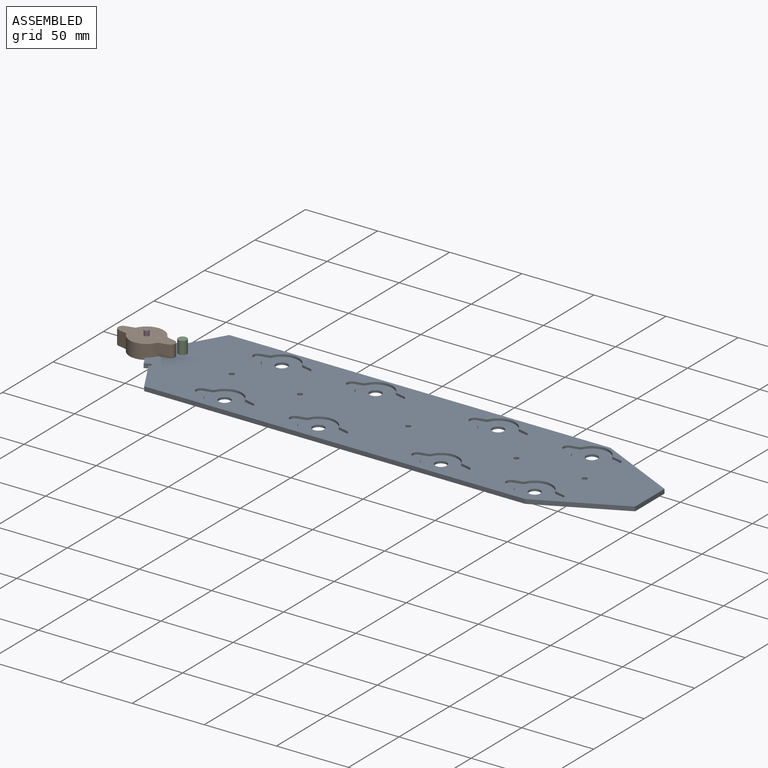
[diagram: assembled view]
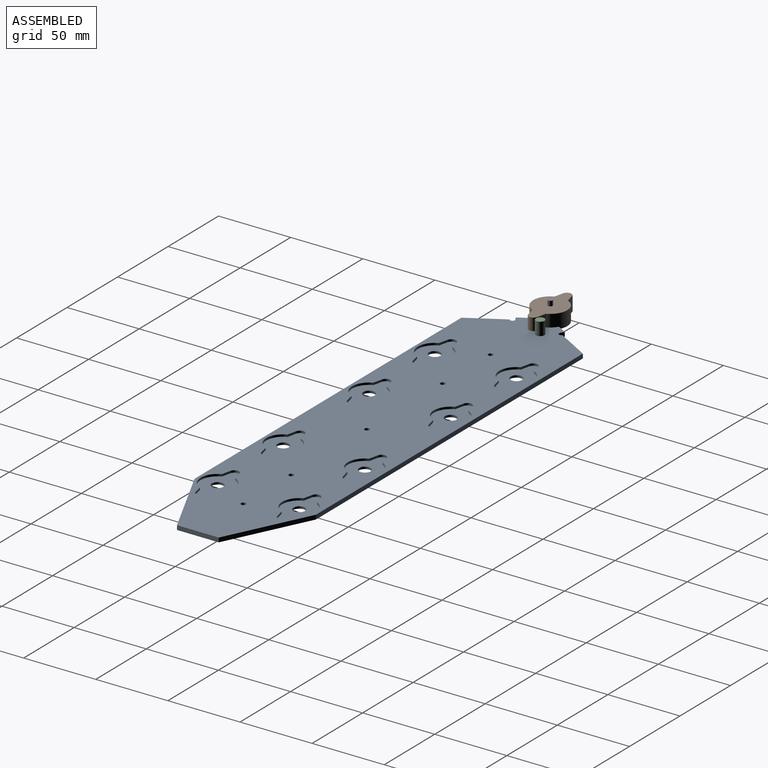
[diagram: assembled view, second angle]
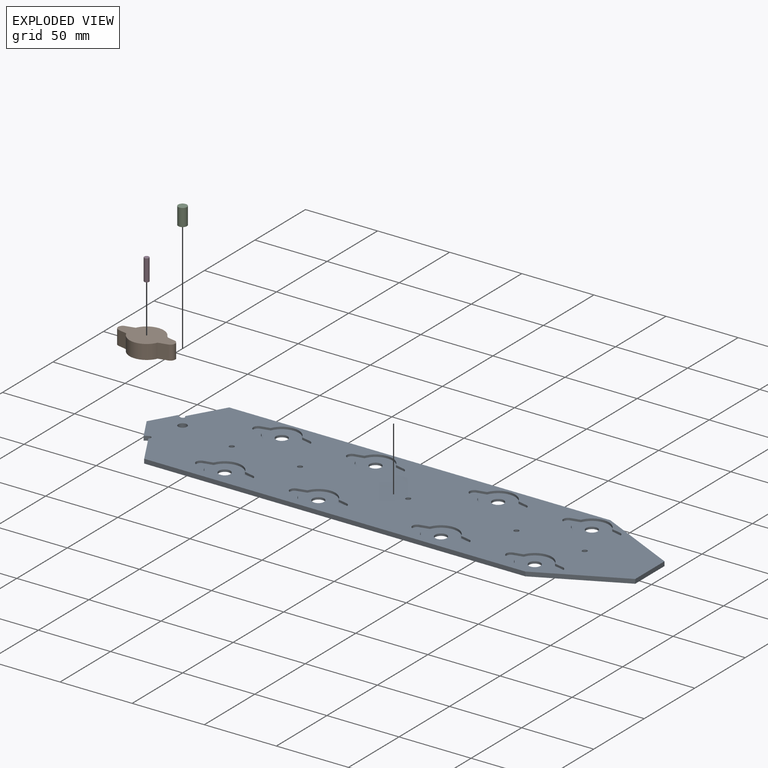
[diagram: exploded view]
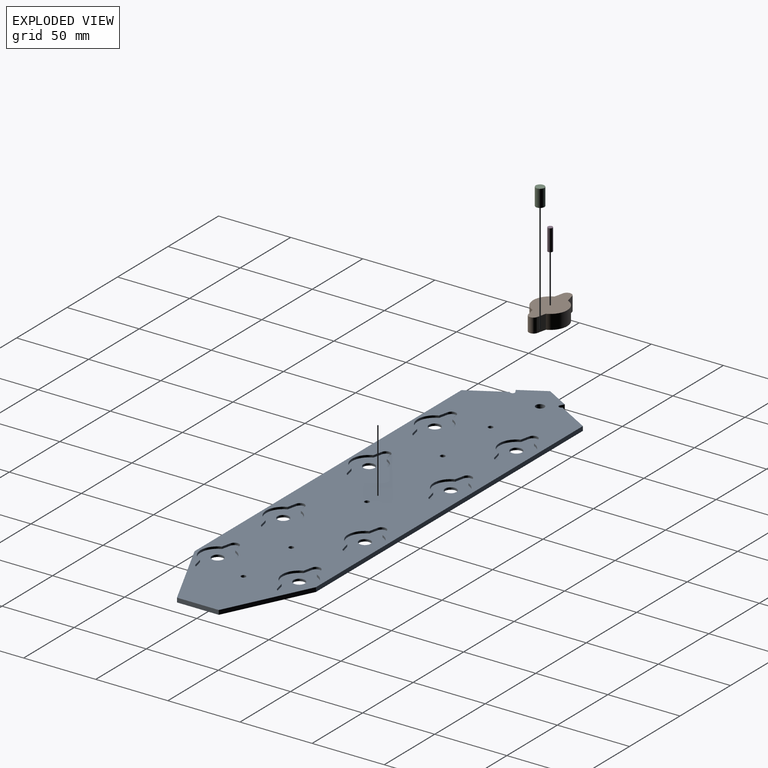
[diagram: exploded view, second angle]
FCSTD DOCUMENT  (FreeCAD 1.1R38827 (Git))
Label: composit_stand3_dropper_fix_top_model
License: All rights reserved
LicenseURL: http://en.wikipedia.org/wiki/All_rights_reserved
objects: PartDesign::SubShapeBinder×7, Part::FeaturePython×6, App::Link×4, PartDesign::Pad×3, PartDesign::Body×2, Part::Mirroring×1, Part::Compound×1, Part::MultiFuse×1, PartDesign::Boolean×1, PartDesign::CoordinateSystem×1
note: 30 computed .brp shape members not serialized (recipe doc carries the construction recipe); baked Part::Feature solids carry a one-line shape summary decoded from their .brp
EXTERNAL_REF file=composit_stand3_dropper_fix_main.FCStd obj=Sketch
EXTERNAL_REF file=../dropper.FCStd obj=Sketch007
EXTERNAL_REF file=../dropper.FCStd obj=Part
EXTERNAL_REF file=composit_stand3_dropper_fix_main.FCStd obj=Populate
EXTERNAL_REF file=composit_stand3_dropper_fix_main.FCStd obj=Cylinder
EXTERNAL_REF file=composit_stand3_dropper_fix_main.FCStd obj=Join
EXTERNAL_REF file=composit_stand3_main.FCStd obj=Cylinder

FEATURE [PartDesign::SubShapeBinder] Binder
  BindCopyOnChange = 0
  BindMode = 0
  ClaimChildren = true
  Fuse = false
  MakeFace = true
  OffsetFill = false
  OffsetIntersection = false
  OffsetJoinType = 0
  OffsetOpenResult = false
  PartialLoad = false
  Relative = false
  Support = -> [<external composit_stand3_dropper_fix_main.FCStd>#Sketch]
  _Version = 2
FEATURE [Part::Mirroring] Part__Mirroring  label="Binder (Mirror #1)"
  Base = (0,0,0)
  Normal = (0,1,0)
  Source = -> Binder
FEATURE [Part::FeaturePython] Connect  # WARN: FeaturePython — macro-defined, semantics opaque (R4)
  Objects = -> [Binder,Part__Mirroring]
  Tolerance = 0
FEATURE [PartDesign::SubShapeBinder] Binder001
  BindCopyOnChange = 0
  BindMode = 0
  ClaimChildren = true
  Context = -> Body [Binder001.]
  Fuse = false
  MakeFace = true
  OffsetFill = false
  OffsetIntersection = false
  OffsetJoinType = 0
  OffsetOpenResult = false
  PartialLoad = false
  Relative = false
  Support = -> [Connect]
  _Version = 2
FEATURE [PartDesign::SubShapeBinder] Binder002
  BindCopyOnChange = 0
  BindMode = 0
  ClaimChildren = false
  Fuse = false
  MakeFace = true
  OffsetFill = false
  OffsetIntersection = false
  OffsetJoinType = 0
  OffsetOpenResult = false
  PartialLoad = false
  Relative = false
  Support = -> [<external ../dropper.FCStd>#Sketch007]
  _Version = 2
  expr: Support = dropper#<<base>>._self
FEATURE [PartDesign::SubShapeBinder] Binder003
  BindCopyOnChange = 0
  BindMode = 0
  ClaimChildren = false
  Fuse = false
  MakeFace = true
  OffsetFill = false
  OffsetIntersection = false
  OffsetJoinType = 0
  OffsetOpenResult = false
  PartialLoad = false
  Relative = false
  Support = -> [<external ../dropper.FCStd>#Part[Body.Binder.Connect.]]
  _Version = 2
FEATURE [PartDesign::SubShapeBinder] Binder004
  BindCopyOnChange = 0
  BindMode = 0
  ClaimChildren = false
  Fuse = false
  MakeFace = true
  OffsetFill = false
  OffsetIntersection = false
  OffsetJoinType = 0
  OffsetOpenResult = false
  PartialLoad = false
  Relative = true
  Support = -> [<external ../dropper.FCStd>#Part[Body.Sketch008.]]
  _Version = 2
FEATURE [Part::Compound] Compound
  Links = -> [Binder002,Binder003]
FEATURE [Part::FeaturePython] FuseCompound  # WARN: FeaturePython — macro-defined, semantics opaque (R4)
  Base = -> Compound
  Refine = true
  recomputeQuota = -1
FEATURE [PartDesign::SubShapeBinder] Binder005
  BindCopyOnChange = 0
  BindMode = 0
  ClaimChildren = true
  Context = -> Body001 [Binder005.]
  Fuse = false
  MakeFace = true
  OffsetFill = false
  OffsetIntersection = false
  OffsetJoinType = 0
  OffsetOpenResult = false
  PartialLoad = false
  Placement = pos=(0,0,1.5) rot=(0,0,1;0rad)
  Relative = false
  Support = -> [FuseCompound]
  _Version = 2
FEATURE [PartDesign::SubShapeBinder] Binder006
  BindCopyOnChange = 0
  BindMode = 0
  ClaimChildren = true
  Context = -> Body001 [Binder006.]
  Fuse = false
  MakeFace = true
  OffsetFill = false
  OffsetIntersection = false
  OffsetJoinType = 0
  OffsetOpenResult = false
  PartialLoad = false
  Relative = false
  Support = -> [Binder004]
  _Version = 2
FEATURE [PartDesign::Pad] Pad
  Direction = (0,0,1)
  Length = 10
  Length2 = 10
  Profile = -> Binder006
  Suppressed = false
  Type = 0
FEATURE [PartDesign::Pad] Pad001
  BaseFeature = -> Pad
  Direction = (0,0,1)
  Length = 10
  Length2 = 10
  Profile = -> Binder005
  Suppressed = false
  Type = 0
FEATURE [PartDesign::Body] Body001
  AllowCompound = false
  Group = -> [Binder005,Binder006,Pad,Pad001]
  Origin = -> Origin001
  Tip = -> Pad001
FEATURE [PartDesign::Pad] Pad002
  Direction = (0,0,1)
  Length = 3
  Length2 = 10
  Profile = -> Binder001
  Suppressed = false
  Type = 0
FEATURE [App::Link] Link  label="Populate modules_placement_x with module_dropper"
  LinkedObject = -> <external composit_stand3_dropper_fix_main.FCStd>#Populate
FEATURE [Part::FeaturePython] Mirror  label="Mirror of Populate modules_placement_x with module_dropper"  # WARN: FeaturePython — macro-defined, semantics opaque (R4)
  ExposePlacement = false
  FlipX = false
  FlipY = true
  FlipZ = false
  MarkerShape = 1
  MarkerSize = 0
  NumElements = 4
  Object = -> Link
  ObjectTraversal = 0
  Type = lattice2Mirror.LatticeMirror
  isLattice = 1
FEATURE [Part::FeaturePython] Join  # WARN: FeaturePython — macro-defined, semantics opaque (R4)
  ExposePlacement = false
  Interleave = false
  Links = -> [Link,Mirror]
  MarkerShape = 1
  MarkerSize = 0
  NumElements = 8
  Type = lattice2JoinArrays.JoinArrays
  isLattice = 1
FEATURE [Part::FeaturePython] Populate  label="Populate Join with Body001"  # WARN: FeaturePython — macro-defined, semantics opaque (R4)
  Copying = 0
  ExposePlacement = false
  MarkerShape = 1
  MarkerSize = 0
  NumElements = 0
  Object = -> Body001
  OutputCompounding = 1
  PlacementsTo = -> Join
  Referencing = 0
  Type = lattice2PopulateCopies.LatticePopulateCopies
  isLattice = 0
FEATURE [App::Link] Link001  label="feed_hole"
  LinkTransform = true
  LinkedObject = -> <external composit_stand3_dropper_fix_main.FCStd>#Cylinder
FEATURE [App::Link] Link002  label="fix"
  LinkedObject = -> <external composit_stand3_dropper_fix_main.FCStd>#Join
FEATURE [App::Link] Link003  label="hole_3.4mm"
  LinkedObject = -> <external composit_stand3_main.FCStd>#Cylinder
FEATURE [Part::FeaturePython] Populate001  label="Populate fix with hole_3.4mm"  # WARN: FeaturePython — macro-defined, semantics opaque (R4)
  Copying = 0
  ExposePlacement = false
  MarkerShape = 1
  MarkerSize = 0
  NumElements = 0
  Object = -> Link003
  OutputCompounding = 1
  PlacementsTo = -> Link002
  Referencing = 0
  Type = lattice2PopulateCopies.LatticePopulateCopies
  isLattice = 0
FEATURE [Part::MultiFuse] Fusion
  Shapes = -> [Populate,Link001,Populate001]
FEATURE [PartDesign::Boolean] Boolean
  BaseFeature = -> Pad002
  Group = -> [Fusion]
  Suppressed = false
  Type = 1
  UsePlacement = true
FEATURE [PartDesign::CoordinateSystem] Local_CS  label="dropper_fix_top_LCS"
  AttacherType = Attacher::AttachEngine3D
  AttachmentOffset = pos=(0,0,6) rot=(1,0,0;3.14159rad)
  AttachmentSupport = -> [XY_Plane]
  MapMode = 5
  Placement = pos=(0,0,6) rot=(1,0,0;3.14159rad)
FEATURE [PartDesign::Body] Body  label="dropper_fix_top"
  AllowCompound = false
  Group = -> [Binder001,Pad002,Boolean,Local_CS]
  Origin = -> Origin
  Tip = -> Boolean

RESOLVED EXTERNAL PARTS (link-assembly join: the EXTERNAL_REF files above that resolve inside this repo's crawl, each included once):
---- part ../dropper.FCStd = doc fcstd_03601a3bb068 ----
FCSTD DOCUMENT  (FreeCAD 1.1R38827 (Git))
Label: dropper
License: All rights reserved
LicenseURL: http://en.wikipedia.org/wiki/All_rights_reserved
objects: Sketcher::SketchObject×9, Part::FeaturePython×4, PartDesign::Revolution×3, PartDesign::Body×2, PartDesign::CoordinateSystem×1, Spreadsheet::Sheet×1, PartDesign::SubShapeBinder×1, PartDesign::Pad×1, PartDesign::Pocket×1, PartDesign::Groove×1, App::Part×1
note: 44 computed .brp shape members not serialized (recipe doc carries the construction recipe); baked Part::Feature solids carry a one-line shape summary decoded from their .brp

FEATURE [Sketcher::SketchObject] Sketch005
  ArcFitTolerance = 0
  AttachmentSupport = -> [YZ_Plane001]
  FullyConstrained = true
  MakeInternals = false
  MapMode = 5
  Placement = pos=(0,0,0) rot=(0.57735,0.57735,0.57735;2.0944rad)
  sketch-geometry (14):
    g0: LineSegment StartX=11.3 StartY=0 StartZ=0 EndX=11.3 EndY=1 EndZ=0
    g1: LineSegment StartX=11.3 StartY=1 StartZ=0 EndX=10.7 EndY=1 EndZ=0
    g2: LineSegment StartX=10.7 StartY=1 StartZ=0 EndX=10.7 EndY=9.9 EndZ=0
    g3: LineSegment StartX=10.7 StartY=9.9 StartZ=0 EndX=6.6 EndY=9.9 EndZ=0
    g4: LineSegment StartX=6.6 StartY=9.9 StartZ=0 EndX=6.6 EndY=3 EndZ=0
    g5: LineSegment StartX=6.6 StartY=3 StartZ=0 EndX=2.5 EndY=3 EndZ=0
    g6: LineSegment StartX=2.5 StartY=3 StartZ=0 EndX=2.5 EndY=20 EndZ=0
    g7: LineSegment StartX=2.5 StartY=20 StartZ=0 EndX=1.45 EndY=20 EndZ=0
    g8: LineSegment StartX=1.45 StartY=20 StartZ=0 EndX=1.45 EndY=2.5 EndZ=0
    g9: LineSegment StartX=1.45 StartY=2.5 StartZ=0 EndX=7 EndY=-0.6 EndZ=0
    g10: LineSegment StartX=7 StartY=-0.6 StartZ=0 EndX=7 EndY=8.85 EndZ=0
    g11: LineSegment StartX=7 StartY=8.85 StartZ=0 EndX=9.5 EndY=8.85 EndZ=0
    g12: LineSegment StartX=9.5 StartY=8.85 StartZ=0 EndX=9.5 EndY=0 EndZ=0
    g13: LineSegment StartX=9.5 StartY=0 StartZ=0 EndX=11.3 EndY=0 EndZ=0
  constraints (43):
    c: PointOnObject(g0,g-1)
    c: Vertical(g0)
    c: Coincident(g0,g1)
    c: Horizontal(g1)
    c: Coincident(g1,g2)
    c: Vertical(g2)
    c: Coincident(g2,g3)
    c: Horizontal(g3)
    c: Coincident(g3,g4)
    c: Vertical(g4)
    c: Coincident(g4,g5)
    c: Coincident(g5,g6)
    c: Vertical(g6)
    c: Coincident(g6,g7)
    c: Horizontal(g7)
    c: Coincident(g7,g8)
    c: Vertical(g8)
    c: Coincident(g8,g9)
    c: Coincident(g9,g10)
    c: Vertical(g10)
    c: Coincident(g10,g11)
    c: Horizontal(g11)
    c: Coincident(g11,g12)
    c: Vertical(g12)
    c: Coincident(g12,g13)
    c: Coincident(g13,g0)
    c: Horizontal(g13)
    c: DistanceX(g0) = 11.3  'outer_r'
    c: DistanceY(g0) = 1
    c: DistanceY(g2) = 9.9
    c: DistanceX(g1,g0) = 0.6
    c: DistanceX(g3,g2) = 4.1
    c: DistanceY(g4,g3) = 6.9
    c: DistanceX(g6) = 2.5
    c: DistanceX(g7) = 1.45
    c: DistanceY(g9,g3) = 10.5
    c: DistanceX(g12,g0) = 1.8
    c: DistanceY(g11) = 8.85
    c: DistanceX(g9) = 7
    c: DistanceY(g9,g6) = 20.6
    c: Horizontal(g5)
    c: DistanceY(g8,g5) = 0.5
    c: DistanceY(g7) = 20
FEATURE [PartDesign::Revolution] Revolution002
  Angle = 360
  Angle2 = 60
  Axis = (0,0,1)
  Base = (0,0,0)
  Placement = pos=(0,0,0) rot=(1,1,1;2.0944rad)
  Profile = -> Sketch005
  ReferenceAxis = -> Sketch005 [V_Axis]
  Reversed = true
  Suppressed = false
  Type = 0
FEATURE [Sketcher::SketchObject] Sketch006
  ArcFitTolerance = 0
  AttachmentSupport = -> [YZ_Plane001]
  FullyConstrained = true
  MakeInternals = false
  MapMode = 5
  Placement = pos=(0,0,0) rot=(0.57735,0.57735,0.57735;2.0944rad)
  expr: Constraints[27] = Sketch005.Constraints.outer_r
  expr: Constraints[28] = Sketch005.Constraints[28]
  expr: Constraints[29] = Sketch005.Constraints[29]
  expr: Constraints[30] = Sketch005.Constraints[30]
  expr: Constraints[31] = Sketch005.Constraints[31]
  expr: Constraints[32] = Sketch005.Constraints[32]
  expr: Constraints[33] = Sketch005.Constraints[33]
  expr: Constraints[34] = Sketch005.Constraints[34]
  expr: Constraints[35] = Sketch005.Constraints[35]
  expr: Constraints[36] = Sketch005.Constraints[36]
  expr: Constraints[37] = Sketch005.Constraints[37]
  expr: Constraints[38] = Sketch005.Constraints[38]
  expr: Constraints[39] = Sketch005.Constraints[39]
  expr: Constraints[41] = Sketch005.Constraints[41]
  expr: Constraints[69] = Sketch005.Constraints.outer_r
  expr: Constraints[70] = Sketch005.Constraints[28]
  expr: Constraints[71] = Sketch005.Constraints[29]
  expr: Constraints[72] = Sketch005.Constraints[30]
  expr: Constraints[73] = Sketch005.Constraints[31]
  expr: Constraints[74] = Sketch005.Constraints[32]
  expr: Constraints[75] = Sketch005.Constraints[33]
  expr: Constraints[76] = Sketch005.Constraints[34]
  expr: Constraints[77] = Sketch005.Constraints[35]
  expr: Constraints[78] = Sketch005.Constraints[36]
  expr: Constraints[79] = Sketch005.Constraints[37]
  expr: Constraints[80] = Sketch005.Constraints[38]
  expr: Constraints[81] = Sketch005.Constraints[39]
  expr: Constraints[83] = Sketch005.Constraints[41]
  sketch-geometry (32):
    g0: LineSegment [constr] StartX=11.3 StartY=0 StartZ=0 EndX=11.3 EndY=1 EndZ=0
    g1: LineSegment [constr] StartX=11.3 StartY=1 StartZ=0 EndX=10.7 EndY=1 EndZ=0
    g2: LineSegment [constr] StartX=10.7 StartY=1 StartZ=0 EndX=10.7 EndY=9.9 EndZ=0
    g3: LineSegment [constr] StartX=10.7 StartY=9.9 StartZ=0 EndX=6.6 EndY=9.9 EndZ=0
    g4: LineSegment StartX=6.6 StartY=9.9 StartZ=0 EndX=6.6 EndY=3 EndZ=0
    g5: LineSegment StartX=6.6 StartY=3 StartZ=0 EndX=2.5 EndY=3 EndZ=0
    g6: LineSegment [constr] StartX=2.5 StartY=3 StartZ=0 EndX=2.5 EndY=20 EndZ=0
    g7: LineSegment [constr] StartX=2.5 StartY=20 StartZ=0 EndX=1.45 EndY=20 EndZ=0
    g8: LineSegment [constr] StartX=1.45 StartY=20 StartZ=0 EndX=1.45 EndY=2.5 EndZ=0
    g9: LineSegment [constr] StartX=1.45 StartY=2.5 StartZ=0 EndX=7 EndY=-0.6 EndZ=0
    g10: LineSegment [constr] StartX=7 StartY=-0.6 StartZ=0 EndX=7 EndY=8.85 EndZ=0
    g11: LineSegment [constr] StartX=7 StartY=8.85 StartZ=0 EndX=9.5 EndY=8.85 EndZ=0
    g12: LineSegment [constr] StartX=9.5 StartY=8.85 StartZ=0 EndX=9.5 EndY=0 EndZ=0
    g13: LineSegment [constr] StartX=9.5 StartY=0 StartZ=0 EndX=11.3 EndY=0 EndZ=0
    g14: LineSegment [constr] StartX=11.3 StartY=0 StartZ=0 EndX=11.3 EndY=1 EndZ=0
    g15: LineSegment [constr] StartX=11.3 StartY=1 StartZ=0 EndX=10.7 EndY=1 EndZ=0
    g16: LineSegment [constr] StartX=10.7 StartY=1 StartZ=0 EndX=10.7 EndY=9.9 EndZ=0
    g17: LineSegment [constr] StartX=10.7 StartY=9.9 StartZ=0 EndX=6.6 EndY=9.9 EndZ=0
    g18: LineSegment [constr] StartX=6.6 StartY=9.9 StartZ=0 EndX=6.6 EndY=3 EndZ=0
    g19: LineSegment [constr] StartX=6.6 StartY=3 StartZ=0 EndX=2.5 EndY=3 EndZ=0
    g20: LineSegment [constr] StartX=2.5 StartY=3 StartZ=0 EndX=2.5 EndY=20 EndZ=0
    g21: LineSegment [constr] StartX=2.5 StartY=20 StartZ=0 EndX=1.45 EndY=20 EndZ=0
    g22: LineSegment [constr] StartX=1.45 StartY=20 StartZ=0 EndX=1.45 EndY=2.5 EndZ=0
    g23: LineSegment [constr] StartX=1.45 StartY=2.5 StartZ=0 EndX=7 EndY=-0.6 EndZ=0
    g24: LineSegment [constr] StartX=7 StartY=-0.6 StartZ=0 EndX=7 EndY=8.85 EndZ=0
    g25: LineSegment [constr] StartX=7 StartY=8.85 StartZ=0 EndX=9.5 EndY=8.85 EndZ=0
    g26: LineSegment [constr] StartX=9.5 StartY=8.85 StartZ=0 EndX=9.5 EndY=0 EndZ=0
    g27: LineSegment [constr] StartX=9.5 StartY=0 StartZ=0 EndX=11.3 EndY=0 EndZ=0
    g28: LineSegment StartX=2.5 StartY=3 StartZ=0 EndX=2.04763 EndY=3 EndZ=0
    g29: LineSegment StartX=2.04763 StartY=3 StartZ=0 EndX=2.04763 EndY=12.6758 EndZ=0
    g30: LineSegment StartX=2.04763 StartY=12.6758 StartZ=0 EndX=6.6 EndY=9.9 EndZ=0
    g31: GeomPoint [constr] X=2.5 Y=12.4 Z=0
  constraints (94):
    c: PointOnObject(g0,g-1)
    c: Vertical(g0)
    c: Coincident(g0,g1)
    c: Horizontal(g1)
    c: Coincident(g1,g2)
    c: Vertical(g2)
    c: Coincident(g2,g3)
    c: Horizontal(g3)
    c: Coincident(g3,g4)
    c: Vertical(g4)
    c: Coincident(g4,g5)
    c: Coincident(g5,g6)
    c: Vertical(g6)
    c: Coincident(g6,g7)
    c: Horizontal(g7)
    c: Coincident(g7,g8)
    c: Vertical(g8)
    c: Coincident(g8,g9)
    c: Coincident(g9,g10)
    c: Vertical(g10)
    c: Coincident(g10,g11)
    c: Horizontal(g11)
    c: Coincident(g11,g12)
    c: Vertical(g12)
    c: Coincident(g12,g13)
    c: Coincident(g13,g0)
    c: Horizontal(g13)
    c: DistanceX(g0) = 11.3
    c: DistanceY(g0) = 1
    c: DistanceY(g2) = 9.9
    c: DistanceX(g1,g0) = 0.6
    c: DistanceX(g3,g2) = 4.1
    c: DistanceY(g4,g3) = 6.9
    c: DistanceX(g6) = 2.5
    c: DistanceX(g7) = 1.45
    c: DistanceY(g9,g3) = 10.5
    c: DistanceX(g12,g0) = 1.8
    c: DistanceY(g11) = 8.85
    c: DistanceX(g9) = 7
    c: DistanceY(g9,g6) = 20.6
    c: Horizontal(g5)
    c: DistanceY(g8,g5) = 0.5
    c: PointOnObject(g14,g-1)
    c: Vertical(g14)
    c: Coincident(g14,g15)
    c: Horizontal(g15)
    c: Coincident(g15,g16)
    c: Vertical(g16)
    c: Coincident(g16,g17)
    c: Horizontal(g17)
    c: Coincident(g17,g18)
    c: Vertical(g18)
    c: Coincident(g18,g19)
    c: Coincident(g19,g20)
    c: Vertical(g20)
    c: Coincident(g20,g21)
    c: Horizontal(g21)
    c: Coincident(g21,g22)
    c: Vertical(g22)
    c: Coincident(g22,g23)
    c: Coincident(g23,g24)
    c: Vertical(g24)
    c: Coincident(g24,g25)
    c: Horizontal(g25)
    c: Coincident(g25,g26)
    c: Vertical(g26)
    c: Coincident(g26,g27)
    c: Coincident(g27,g14)
    c: Horizontal(g27)
    c: DistanceX(g14) = 11.3
    c: DistanceY(g14) = 1
    c: DistanceY(g16) = 9.9
    c: DistanceX(g15,g14) = 0.6
    c: DistanceX(g17,g16) = 4.1
    c: DistanceY(g18,g17) = 6.9
    c: DistanceX(g20) = 2.5
    c: DistanceX(g21) = 1.45
    c: DistanceY(g23,g17) = 10.5
    c: DistanceX(g26,g14) = 1.8
    c: DistanceY(g25) = 8.85
    c: DistanceX(g23) = 7
    c: DistanceY(g23,g20) = 20.6
    c: Horizontal(g19)
    c: DistanceY(g22,g19) = 0.5
    c: Coincident(g28,g5)
    c: Horizontal(g28)
    c: Coincident(g29,g28)
    c: Vertical(g29)
    c: Coincident(g30,g29)
    c: Coincident(g30,g4)
    c: PointOnObject(g31,g30)
    c: PointOnObject(g31,g6)
    c: DistanceY(g4,g31) = 2.5
    c: DistanceX(g29,g31) = 0.452366
FEATURE [PartDesign::Body] Body001
  AllowCompound = false
  Group = -> [Sketch005,Revolution002,Sketch006]
  Origin = -> Origin001
  Placement = pos=(0,0,2.5) rot=(0,0,1;0rad)
  Tip = -> Revolution002
FEATURE [Sketcher::SketchObject] Sketch007  label="base"
  ArcFitTolerance = 0
  FullyConstrained = true
  MakeInternals = false
  expr: .Constraints.r = Sketch005.Constraints.outer_r + 0.5 mm
  sketch-geometry (1):
    g0: Circle CenterX=0 CenterY=0 CenterZ=0 NormalX=0 NormalY=0 NormalZ=1 AngleXU=0 Radius=11.8
  constraints (2):
    c: Coincident(g0,g-1)
    c: Radius(g0) = 11.8  'r'
FEATURE [Sketcher::SketchObject] Sketch002
  ArcFitTolerance = 0
  AttachmentSupport = -> [YZ_Plane]
  FullyConstrained = true
  MakeInternals = false
  MapMode = 5
  Placement = pos=(0,0,0) rot=(0.57735,0.57735,0.57735;2.0944rad)
  expr: Constraints[18] = Sketch001.Constraints[18]
  expr: Constraints[19] = Sketch001.Constraints[19]
  expr: Constraints[20] = Sketch001.Constraints[20]
  expr: Constraints[21] = Sketch001.Constraints[21]
  expr: Constraints[22] = Sketch001.Constraints[22]
  expr: Constraints[23] = Sketch001.Constraints[23]
  expr: Constraints[24] = Sketch001.Constraints[24]
  expr: Constraints[25] = Sketch001.Constraints[25]
  expr: Constraints[27] = Sketch001.Constraints[27]
  sketch-geometry (13):
    g0: LineSegment [constr] StartX=1.15 StartY=0 StartZ=0 EndX=1.15 EndY=-18.1612 EndZ=0
    g1: LineSegment StartX=1.15 StartY=-18.1612 StartZ=0 EndX=2.765 EndY=-8.77 EndZ=0
    g2: LineSegment [constr] StartX=2.765 StartY=-8.77 StartZ=0 EndX=2.2 EndY=-8.77 EndZ=0
    g3: LineSegment [constr] StartX=2.2 StartY=-8.77 StartZ=0 EndX=2.2 EndY=-5.32 EndZ=0
    g4: LineSegment [constr] StartX=2.2 StartY=-5.32 StartZ=0 EndX=3.35 EndY=-5.32 EndZ=0
    g5: LineSegment [constr] StartX=3.35 StartY=-5.32 StartZ=0 EndX=3.35 EndY=-3.66 EndZ=0
    g6: LineSegment [constr] StartX=3.35 StartY=-3.66 StartZ=0 EndX=2.65 EndY=-3.66 EndZ=0
    g7: LineSegment [constr] StartX=2.65 StartY=-3.66 StartZ=0 EndX=2.65 EndY=0 EndZ=0
    g8: LineSegment [constr] StartX=2.65 StartY=0 StartZ=0 EndX=1.15 EndY=0 EndZ=0
    g9: GeomPoint [constr] X=-2.765 Y=-8.77 Z=0
    g10: GeomPoint [constr] X=-2.765 Y=-8.77 Z=0
    g11: LineSegment StartX=1.15 StartY=-18.1612 StartZ=0 EndX=-3.0574 EndY=-18.1612 EndZ=0
    g12: LineSegment StartX=-3.0574 StartY=-18.1612 StartZ=0 EndX=2.765 EndY=-8.77 EndZ=0
  constraints (34):
    c: PointOnObject(g0,g-1)
    c: Vertical(g0)
    c: Coincident(g0,g1)
    c: Coincident(g1,g2)
    c: Horizontal(g2)
    c: Coincident(g2,g3)
    c: Vertical(g3)
    c: Coincident(g3,g4)
    c: Horizontal(g4)
    c: Coincident(g4,g5)
    c: Vertical(g5)
    c: Coincident(g5,g6)
    c: Horizontal(g6)
    c: Coincident(g6,g7)
    c: PointOnObject(g7,g-1)
    c: Vertical(g7)
    c: Coincident(g7,g8)
    c: Coincident(g8,g0)
    c: DistanceY(g2,g3) = 3.45
    c: DistanceY(g4,g5) = 1.66
    c: DistanceY(g6,g7) = 3.66
    c: DistanceX(g2) = 2.2
    c: DistanceX(g4) = 3.35
    c: DistanceX(g0) = 1.15
    c: DistanceX(g7) = 2.65
    c: DistanceX(g1) = 2.765
    c: Symmetric(g9,g1,g-2)
    c: Distance(g9,g1) = 5.45
    c: Symmetric(g10,g1,g-2)
    c: Coincident(g11,g1)
    c: Horizontal(g11)
    c: Coincident(g12,g11)
    c: Coincident(g12,g1)
    c: Distance(g9,g12) = 4.7
FEATURE [Sketcher::SketchObject] Sketch001
  ArcFitTolerance = 0
  AttachmentSupport = -> [XZ_Plane]
  FullyConstrained = true
  MakeInternals = false
  MapMode = 5
  Placement = pos=(0,0,0) rot=(1,0,0;1.5708rad)
  sketch-geometry (10):
    g0: LineSegment StartX=1.15 StartY=0 StartZ=0 EndX=1.15 EndY=-18.1612 EndZ=0
    g1: LineSegment StartX=1.15 StartY=-18.1612 StartZ=0 EndX=2.765 EndY=-8.77 EndZ=0
    g2: LineSegment StartX=2.765 StartY=-8.77 StartZ=0 EndX=2.2 EndY=-8.77 EndZ=0
    g3: LineSegment StartX=2.2 StartY=-8.77 StartZ=0 EndX=2.2 EndY=-5.32 EndZ=0
    g4: LineSegment StartX=2.2 StartY=-5.32 StartZ=0 EndX=3.35 EndY=-5.32 EndZ=0
    g5: LineSegment StartX=3.35 StartY=-5.32 StartZ=0 EndX=3.35 EndY=-3.66 EndZ=0
    g6: LineSegment StartX=3.35 StartY=-3.66 StartZ=0 EndX=2.65 EndY=-3.66 EndZ=0
    g7: LineSegment StartX=2.65 StartY=-3.66 StartZ=0 EndX=2.65 EndY=0 EndZ=0
    g8: LineSegment StartX=2.65 StartY=0 StartZ=0 EndX=1.15 EndY=0 EndZ=0
    g9: GeomPoint [constr] X=-2.765 Y=-8.77 Z=0
  constraints (28):
    c: PointOnObject(g0,g-1)
    c: Vertical(g0)
    c: Coincident(g0,g1)
    c: Coincident(g1,g2)
    c: Horizontal(g2)
    c: Coincident(g2,g3)
    c: Vertical(g3)
    c: Coincident(g3,g4)
    c: Horizontal(g4)
    c: Coincident(g4,g5)
    c: Vertical(g5)
    c: Coincident(g5,g6)
    c: Horizontal(g6)
    c: Coincident(g6,g7)
    c: PointOnObject(g7,g-1)
    c: Vertical(g7)
    c: Coincident(g7,g8)
    c: Coincident(g8,g0)
    c: DistanceY(g2,g3) = 3.45
    c: DistanceY(g4,g5) = 1.66
    c: DistanceY(g6,g7) = 3.66
    c: DistanceX(g2) = 2.2
    c: DistanceX(g4) = 3.35
    c: DistanceX(g0) = 1.15
    c: DistanceX(g7) = 2.65
    c: DistanceX(g1) = 2.765
    c: Symmetric(g9,g1,g-2)
    c: Distance(g9,g1) = 5.45
FEATURE [Sketcher::SketchObject] Sketch  label="fix_sketch"
  ArcFitTolerance = 0
  AttachmentSupport = -> [XY_Plane]
  FullyConstrained = true
  MakeInternals = false
  MapMode = 5
  sketch-geometry (5):
    g0: ArcOfCircle CenterX=0 CenterY=0 CenterZ=0 NormalX=0 NormalY=0 NormalZ=1 AngleXU=0 Radius=10.5 StartAngle=0.496317 EndAngle=1.5708
    g1: ArcOfCircle CenterX=16.5 CenterY=0 CenterZ=0 NormalX=0 NormalY=0 NormalZ=1 AngleXU=0 Radius=3.25 StartAngle=0 EndAngle=1.34547
    g2: LineSegment StartX=17.2261 StartY=3.16784 StartZ=0 EndX=9.23309 EndY=5 EndZ=0
    g3: GeomPoint [constr] X=-19.75 Y=0 Z=0
    g4: GeomPoint [constr] X=0 Y=-10.5 Z=0
  constraints (14):
    c: PointOnObject(g0,g-2)
    c: PointOnObject(g1,g-1)
    c: PointOnObject(g1,g-1)
    c: Coincident(g2,g0)
    c: Tangent(g2,g1) = -1.5708
    c: Diameter(g0) = 21
    c: DistanceX(g1) = 19.75
    c: DistanceY(g0) = 5
    c: Diameter(g1) = 6.5
    c: Coincident(g0,g-1)
    c: Symmetric(g3,g1,g-2)
    c: DistanceX(g3,g1) = 39.5  'length'
    c: Symmetric(g4,g0,g-1)
    c: DistanceY(g4,g0) = 21  'width'
FEATURE [Sketcher::SketchObject] Sketch004
  ArcFitTolerance = 0
  AttachmentSupport = -> [YZ_Plane]
  FullyConstrained = true
  MakeInternals = false
  MapMode = 5
  Placement = pos=(0,0,0) rot=(0.57735,0.57735,0.57735;2.0944rad)
  expr: Constraints[3] = Sketch003.Constraints[9]
  sketch-geometry (6):
    g0: LineSegment StartX=7.75 StartY=10.9 StartZ=0 EndX=0 EndY=10.9 EndZ=0
    g1: LineSegment StartX=0 StartY=10.9 StartZ=0 EndX=0 EndY=1.5 EndZ=0
    g2: LineSegment StartX=0 StartY=1.5 StartZ=0 EndX=7.25 EndY=1.5 EndZ=0
    g3: LineSegment StartX=7.25 StartY=1.5 StartZ=0 EndX=7.25 EndY=2.5 EndZ=0
    g4: LineSegment StartX=7.25 StartY=2.5 StartZ=0 EndX=7.75 EndY=4 EndZ=0
    g5: LineSegment StartX=7.75 StartY=4 StartZ=0 EndX=7.75 EndY=10.9 EndZ=0
  constraints (18):
    c: Coincident(g0,g1)
    c: Horizontal(g0)
    c: Vertical(g1)
    c: DistanceY(g0) = 10.9
    c: Horizontal(g2)
    c: Coincident(g2,g3)
    c: Vertical(g3)
    c: Coincident(g3,g4)
    c: Coincident(g4,g5)
    c: Vertical(g5)
    c: Coincident(g0,g5)
    c: Coincident(g1,g2)
    c: DistanceY(g1,g0) = 9.4
    c: DistanceX(g0) = 7.75
    c: DistanceY(g2,g3) = 1
    c: DistanceY(g3,g4) = 1.5
    c: DistanceX(g2,g4) = 0.5
    c: Vertical(g1,g-1)
FEATURE [Sketcher::SketchObject] Sketch003
  ArcFitTolerance = 0
  AttachmentSupport = -> [YZ_Plane]
  FullyConstrained = true
  MakeInternals = false
  MapMode = 5
  Placement = pos=(0,0,0) rot=(0.57735,0.57735,0.57735;2.0944rad)
  sketch-geometry (4):
    g0: LineSegment StartX=0 StartY=0 StartZ=0 EndX=8.825 EndY=0 EndZ=0
    g1: LineSegment StartX=8.825 StartY=0 StartZ=0 EndX=8.825 EndY=10.9 EndZ=0
    g2: LineSegment StartX=8.825 StartY=10.9 StartZ=0 EndX=0 EndY=10.9 EndZ=0
    g3: LineSegment StartX=0 StartY=10.9 StartZ=0 EndX=0 EndY=0 EndZ=0
  constraints (11):
    c: Coincident(g0,g1)
    c: Coincident(g1,g2)
    c: Coincident(g2,g3)
    c: Coincident(g3,g0)
    c: Horizontal(g0)
    c: Horizontal(g2)
    c: Vertical(g1)
    c: Vertical(g3)
    c: Coincident(g0,g-1)
    c: DistanceY(g2) = 10.9
    c: DistanceX(g0) = 8.825
FEATURE [PartDesign::CoordinateSystem] LCS_0
  AttacherType = Attacher::AttachEngine3D
  AttachmentOffset = pos=(0,0,2.45) rot=(0,0,1;0rad)
  AttachmentSupport = -> [X_Axis002]
  MapMode = 2
  Placement = pos=(0,0,2.45) rot=(0,0,1;0rad)
FEATURE [Spreadsheet::Sheet] Spreadsheet  label="Properties"
  cells = B2(top_d)==22.6 mm; C2(bot_d)==21 mm; D2(top_height)==20 mm; E2(bot_base_height)==2.4 mm; F2(total_height)==22.4 mm; G2(total_width)==38.9 mm
FEATURE [Part::FeaturePython] Mirror  label="Mirror of Sketch"  # WARN: FeaturePython — macro-defined, semantics opaque (R4)
  ExposePlacement = false
  FlipX = true
  FlipY = false
  FlipZ = false
  MarkerShape = 1
  MarkerSize = 0
  NumElements = 0
  Object = -> Sketch
  ObjectTraversal = 0
  Type = lattice2Mirror.LatticeMirror
  isLattice = 0
FEATURE [Part::FeaturePython] Mirror001  label="Mirror001 of Mirror of Sketch"  # WARN: FeaturePython — macro-defined, semantics opaque (R4)
  ExposePlacement = false
  FlipX = false
  FlipY = true
  FlipZ = false
  MarkerShape = 1
  MarkerSize = 0
  NumElements = 0
  Object = -> Mirror
  ObjectTraversal = 0
  Type = lattice2Mirror.LatticeMirror
  isLattice = 0
FEATURE [Part::FeaturePython] Mirror002  label="Mirror002 of Mirror001 of Mirror of Sketch"  # WARN: FeaturePython — macro-defined, semantics opaque (R4)
  ExposePlacement = false
  FlipX = true
  FlipY = false
  FlipZ = false
  MarkerShape = 1
  MarkerSize = 0
  NumElements = 0
  Object = -> Mirror001
  ObjectTraversal = 0
  Type = lattice2Mirror.LatticeMirror
  isLattice = 0
FEATURE [PartDesign::SubShapeBinder] Binder
  BindCopyOnChange = 0
  BindMode = 0
  ClaimChildren = true
  Context = -> Part [Body.Binder.]
  Fuse = false
  MakeFace = true
  OffsetFill = false
  OffsetIntersection = false
  OffsetJoinType = 0
  OffsetOpenResult = false
  PartialLoad = false
  Relative = true
  Support = -> [Connect]
  _Version = 2
FEATURE [PartDesign::Pad] Pad
  Direction = (0,0,1)
  Length = 2.45
  Length2 = 10
  Profile = -> Binder
  Suppressed = false
  Type = 0
FEATURE [PartDesign::Revolution] Revolution
  Angle = 360
  Angle2 = 60
  Axis = (0,2e-16,1)
  Base = (0,0,0)
  BaseFeature = -> Pad
  Profile = -> Sketch001
  ReferenceAxis = -> Sketch001 [V_Axis]
  Reversed = true
  Suppressed = false
  Type = 0
FEATURE [PartDesign::Pocket] Pocket
  BaseFeature = -> Revolution
  Direction = (-1,0,0)
  Length = 5
  Length2 = 5
  Midplane = true
  Profile = -> Sketch002
  ReferenceAxis = -> Sketch002 [N_Axis]
  Suppressed = false
  Type = 1
FEATURE [PartDesign::Revolution] Revolution001
  Angle = 360
  Angle2 = 60
  Axis = (0,0,1)
  Base = (0,0,0)
  BaseFeature = -> Pocket
  Profile = -> Sketch003
  ReferenceAxis = -> Sketch003 [V_Axis]
  Reversed = true
  Suppressed = false
  Type = 0
FEATURE [PartDesign::Groove] Groove
  Angle = 360
  Angle2 = 60
  Axis = (0,0,1)
  Base = (0,0,0)
  BaseFeature = -> Revolution001
  Profile = -> Sketch004
  ReferenceAxis = -> Sketch004 [V_Axis]
  Suppressed = false
  Type = 0
FEATURE [Sketcher::SketchObject] Sketch008  label="feed"
  ArcFitTolerance = 0
  AttachmentSupport = -> [XY_Plane]
  FullyConstrained = true
  MakeInternals = false
  MapMode = 5
  sketch-geometry (1):
    g0: Circle CenterX=0 CenterY=0 CenterZ=0 NormalX=0 NormalY=0 NormalZ=1 AngleXU=0 Radius=4
  constraints (2):
    c: Coincident(g0,g-1)
    c: Diameter(g0) = 8
FEATURE [PartDesign::Body] Body
  AllowCompound = false
  Group = -> [Sketch,Pad,Sketch001,Revolution,Sketch002,Pocket,Sketch003,Sketch004,Revolution001,Groove,Sketch008,Binder]
  Origin = -> Origin
  Tip = -> Groove
FEATURE [App::Part] Part  label="dropper"
  Group = -> [LCS_0,Body001,Body]
  Origin = -> Origin002
FEATURE [Part::FeaturePython] Connect  label="fix"  # WARN: FeaturePython — macro-defined, semantics opaque (R4)
  Objects = -> [Sketch,Mirror002,Mirror001,Mirror]
  Tolerance = 0
---- part composit_stand3_main.FCStd = doc fcstd_90b2f18ea94f ----
FCSTD DOCUMENT  (FreeCAD 1.1R38827 (Git))
Label: composit_stand3_main
License: All rights reserved
LicenseURL: http://en.wikipedia.org/wiki/All_rights_reserved
objects: Part::Cylinder×2, Sketcher::SketchObject×1, Part::FeaturePython×1
note: 5 computed .brp shape members not serialized (recipe doc carries the construction recipe); baked Part::Feature solids carry a one-line shape summary decoded from their .brp

FEATURE [Sketcher::SketchObject] Sketch  label="main_sketch"
  ArcFitTolerance = 0
  FullyConstrained = true
  MakeInternals = false
  sketch-geometry (4):
    g0: LineSegment [constr] StartX=0 StartY=0 StartZ=0 EndX=8.37158 EndY=14.5 EndZ=0
    g1: LineSegment StartX=8.37158 StartY=14.5 StartZ=0 EndX=351.872 EndY=14.5 EndZ=0
    g2: LineSegment StartX=351.872 StartY=14.5 StartZ=0 EndX=351.872 EndY=0 EndZ=0
    g3: GeomPoint [constr] X=351.872 Y=-14.5 Z=0
  constraints (13):
    c: Coincident(g-1,g0)
    c: Horizontal(g1)
    c: Coincident(g1,g2)
    c: PointOnObject(g2,g-1)
    c: Vertical(g2)
    c: Angle(g0) = 1.0472
    c: DistanceX(g0,g1) = 343.5  'face_width'
    c: DistanceY(g3,g1) = 29  'end_width'
    c: Symmetric(g3,g1,g2)
    c: DistanceX(g0) = 8.37158  'x_face_offset'
    c: Coincident(g1,g0)
    c: Distance(g0) = 16.7432  'corner_distance'
    c: DistanceY(g0,g0) = 14.5
FEATURE [Part::FeaturePython] LinearArray  label="modules_placement_x"  # WARN: FeaturePython — macro-defined, semantics opaque (R4)
  Alignment = 0
  CellStart = A1
  Count = 2
  Dir = (1,0,0)
  DirIsDriven = true
  DistributionLaw = 0
  DrivenProperty = 1
  EndInclusive = true
  ExposePlacement = false
  GeneratorMode = 0
  MarkerShape = 1
  MarkerSize = 0
  NumElements = 2
  OrientMode = 1
  Placement = pos=(8.37158,14.5,0) rot=(0,0,1;0rad)
  Point = (0,0,0)
  PointIsDriven = true
  Reverse = false
  SpanEnd = 248
  SpanStart = 98
  Step = 150
  Type = lattice2LinearArray.LinearArray
  VSGVersion = 1
  Values = 98.0 | 248.0
  ValuesSource = 2
  isLattice = 1
  expr: .Placement.Base.x = <<main_sketch>>.Constraints.end_width / 2 / tan(60)
  expr: .Placement.Base.y = <<main_sketch>>.Constraints.end_width / 2
FEATURE [Part::Cylinder] Cylinder  label="hole_3.4mm"
  Angle = 360
  AttacherType = Attacher::AttachEngine3D
  FirstAngle = 0
  Height = 15
  Radius = 1.7
  SecondAngle = 0
FEATURE [Part::Cylinder] Cylinder001  label="hole_3.4mm_rev"
  Angle = 360
  AttacherType = Attacher::AttachEngine3D
  FirstAngle = 0
  Height = 15
  Placement = pos=(0,0,0) rot=(1,0,0;3.14159rad)
  Radius = 1.7
  SecondAngle = 0
